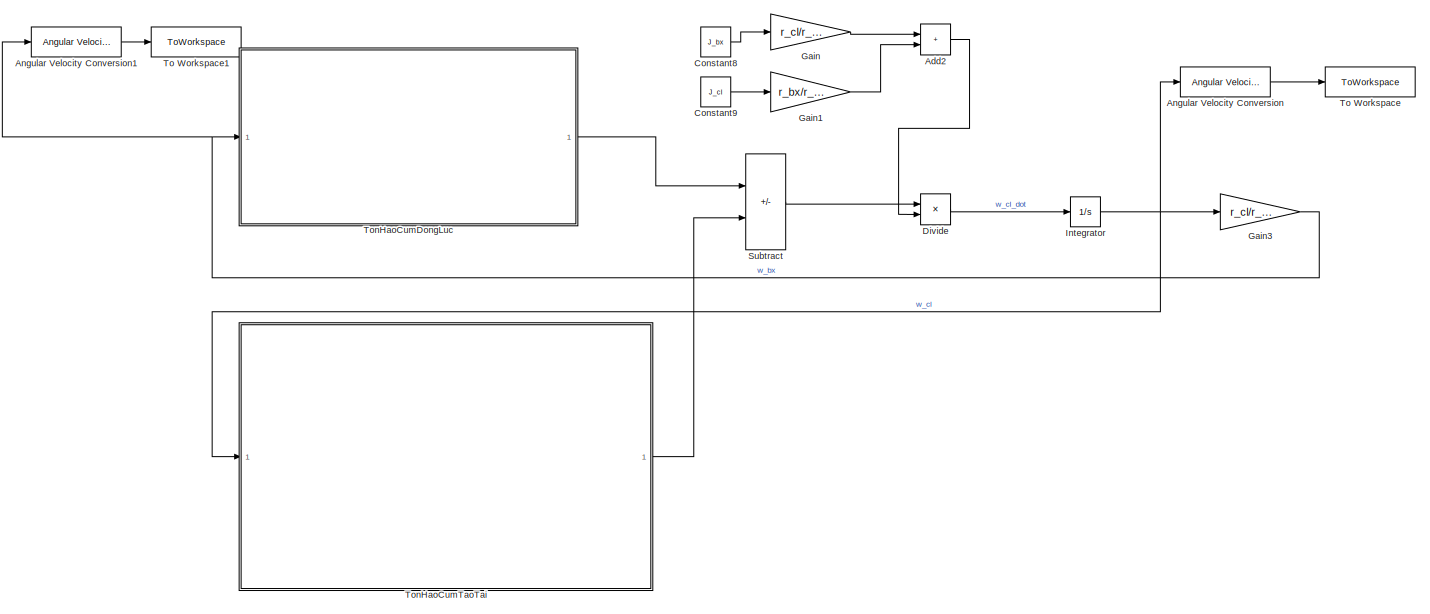
[diagram: root canvas - part 1/2, most of the canvas]
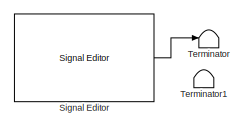
[diagram: root canvas - part 2/2, middle left region]
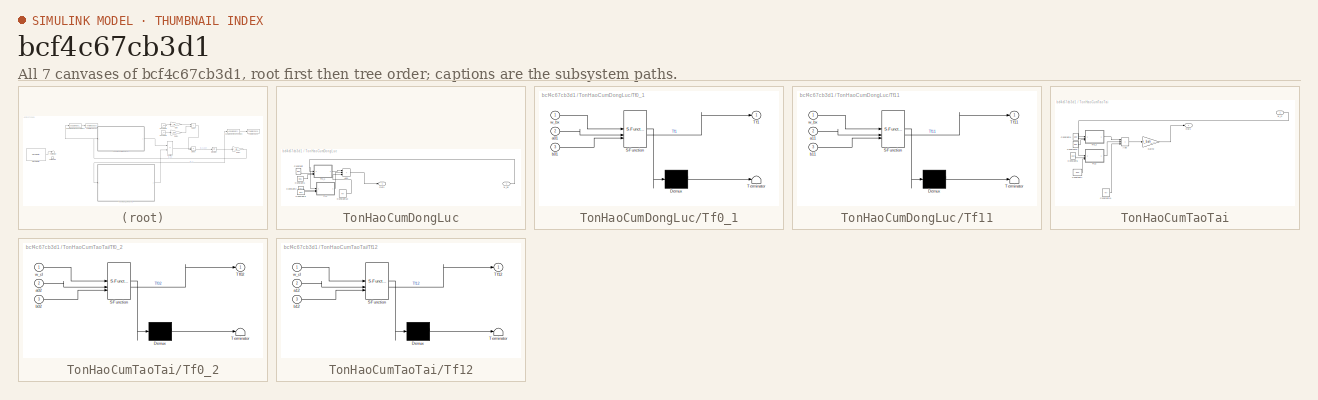
[diagram: thumbnail index - all 7 canvases of the model, root first then tree order]
MODEL slx_bcf4c67cb3d1
KIND model
CONFIG AbsTol = 1e-3
CONFIG EnableMultiTasking = on
CONFIG FixedStep = 0.2
CONFIG MaxStep = auto
CONFIG MinStep = auto
CONFIG RelTol = 1e-3
CONFIG SampleTimeConstraint = Unconstrained
CONFIG SolverName = FixedStepAuto
CONFIG StartTime = 0
CONFIG StopTime = 14.2
BLOCK [Sum] Add2
  IconShape = rectangular
BLOCK [Reference] Angular Velocity Conversion  REF=aerolibconvert2/Angular Velocity
Conversion
  SourceBlock = aerolibconvert2/Angular Velocity\nConversion
  SourceType = Angular Velocity Conversion
BLOCK [Reference] Angular Velocity Conversion1  REF=aerolibconvert2/Angular Velocity
Conversion
  SourceBlock = aerolibconvert2/Angular Velocity\nConversion
  SourceType = Angular Velocity Conversion
BLOCK [Constant] Constant8
  Value = J_bx
BLOCK [Constant] Constant9
  Value = J_cl
  VectorParams1D = off
BLOCK [Product] Divide
  Inputs = */
BLOCK [Gain] Gain
  Gain = r_cl/r_bx
BLOCK [Gain] Gain1
  Gain = r_bx/r_cl
BLOCK [Gain] Gain3
  Gain = r_cl/r_bx
BLOCK [Integrator] Integrator
  InitialCondition = w_cl_initial
  LimitOutput = on
  LowerSaturationLimit = 0
BLOCK [Reference] Signal Editor  REF=SignalEditorBlockLib/Signal Editor
  LibrarySourceBlock = simulink/Sources/Signal Editor
  SourceBlock = SignalEditorBlockLib/Signal Editor
  SourceType = SignalEditor
  UserDataPersistent = on
BLOCK [Sum] Subtract
  IconShape = rectangular
  Inputs = --
BLOCK [Terminator] Terminator
BLOCK [Terminator] Terminator1
BLOCK [ToWorkspace] To Workspace
  FixptAsFi = on
  MaxDataPoints = inf
  SampleTime = -1
  SaveFormat = Timeseries
  VariableName = n_cl
BLOCK [ToWorkspace] To Workspace1
  FixptAsFi = on
  MaxDataPoints = inf
  SampleTime = -1
  SaveFormat = Timeseries
  VariableName = n_bx
BLOCK [SubSystem] TonHaoCumDongLuc
BLOCK [Sum] TonHaoCumDongLuc/Add1
  IconShape = rectangular
  Inputs = +++
BLOCK [Constant] TonHaoCumDongLuc/Constant
  Value = a01
BLOCK [Constant] TonHaoCumDongLuc/Constant1
  Value = b01
BLOCK [Constant] TonHaoCumDongLuc/Constant10
  Value = Trr
BLOCK [Constant] TonHaoCumDongLuc/Constant2
  Value = a11
BLOCK [Constant] TonHaoCumDongLuc/Constant3
  Value = b11
BLOCK [Outport] TonHaoCumDongLuc/Out1
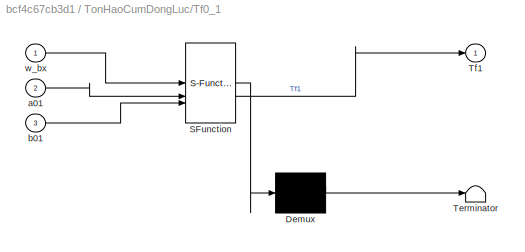
BLOCK [SubSystem] TonHaoCumDongLuc/Tf0_1
  ErrorFcn = Stateflow.Translate.translate
  PermitHierarchicalResolution = ExplicitOnly
  SFBlockType = MATLAB Function
  TreatAsAtomicUnit = on
BLOCK [Demux] TonHaoCumDongLuc/Tf0_1/ Demux 
  Outputs = 1
BLOCK [S-Function] TonHaoCumDongLuc/Tf0_1/ SFunction 
  EnableBusSupport = on
  FunctionName = sf_sfun
  PortCounts = [3 2]
  SFcnIsStateOwnerBlock = off
  SFunctionDeploymentMode = off
  Tag = Stateflow S-Function 2
BLOCK [Terminator] TonHaoCumDongLuc/Tf0_1/ Terminator 
BLOCK [Outport] TonHaoCumDongLuc/Tf0_1/Tf1
BLOCK [Inport] TonHaoCumDongLuc/Tf0_1/a01
  Port = 2
BLOCK [Inport] TonHaoCumDongLuc/Tf0_1/b01
  Port = 3
BLOCK [Inport] TonHaoCumDongLuc/Tf0_1/w_bx
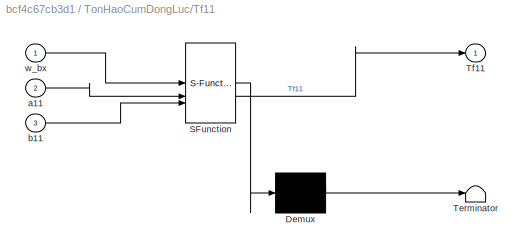
BLOCK [SubSystem] TonHaoCumDongLuc/Tf11
  ErrorFcn = Stateflow.Translate.translate
  PermitHierarchicalResolution = ExplicitOnly
  SFBlockType = MATLAB Function
  TreatAsAtomicUnit = on
BLOCK [Demux] TonHaoCumDongLuc/Tf11/ Demux 
  Outputs = 1
BLOCK [S-Function] TonHaoCumDongLuc/Tf11/ SFunction 
  EnableBusSupport = on
  FunctionName = sf_sfun
  PortCounts = [3 2]
  SFcnIsStateOwnerBlock = off
  SFunctionDeploymentMode = off
  Tag = Stateflow S-Function 3
BLOCK [Terminator] TonHaoCumDongLuc/Tf11/ Terminator 
BLOCK [Outport] TonHaoCumDongLuc/Tf11/Tf11
BLOCK [Inport] TonHaoCumDongLuc/Tf11/a11
  Port = 2
BLOCK [Inport] TonHaoCumDongLuc/Tf11/b11
  Port = 3
BLOCK [Inport] TonHaoCumDongLuc/Tf11/w_bx
BLOCK [Inport] TonHaoCumDongLuc/w_bx
BLOCK [SubSystem] TonHaoCumTaoTai
BLOCK [Sum] TonHaoCumTaoTai/Add
  IconShape = rectangular
  Inputs = +++
BLOCK [Constant] TonHaoCumTaoTai/Constant11
  Value = Trr
BLOCK [Constant] TonHaoCumTaoTai/Constant4
  Value = a02
BLOCK [Constant] TonHaoCumTaoTai/Constant5
  Value = b02
BLOCK [Constant] TonHaoCumTaoTai/Constant6
  Value = a12
BLOCK [Constant] TonHaoCumTaoTai/Constant7
  Value = b12
BLOCK [Gain] TonHaoCumTaoTai/Gain2
  Gain = r_bx/r_cl
BLOCK [Outport] TonHaoCumTaoTai/Out1
BLOCK [SubSystem] TonHaoCumTaoTai/Tf0_2
  ErrorFcn = Stateflow.Translate.translate
  PermitHierarchicalResolution = ExplicitOnly
  SFBlockType = MATLAB Function
  TreatAsAtomicUnit = on
BLOCK [Demux] TonHaoCumTaoTai/Tf0_2/ Demux 
  Outputs = 1
BLOCK [S-Function] TonHaoCumTaoTai/Tf0_2/ SFunction 
  EnableBusSupport = on
  FunctionName = sf_sfun
  PortCounts = [3 2]
  SFcnIsStateOwnerBlock = off
  SFunctionDeploymentMode = off
  Tag = Stateflow S-Function 1
BLOCK [Terminator] TonHaoCumTaoTai/Tf0_2/ Terminator 
BLOCK [Outport] TonHaoCumTaoTai/Tf0_2/Tf02
BLOCK [Inport] TonHaoCumTaoTai/Tf0_2/a02
  Port = 2
BLOCK [Inport] TonHaoCumTaoTai/Tf0_2/b02
  Port = 3
BLOCK [Inport] TonHaoCumTaoTai/Tf0_2/w_cl
BLOCK [SubSystem] TonHaoCumTaoTai/Tf12
  ErrorFcn = Stateflow.Translate.translate
  PermitHierarchicalResolution = ExplicitOnly
  SFBlockType = MATLAB Function
  TreatAsAtomicUnit = on
BLOCK [Demux] TonHaoCumTaoTai/Tf12/ Demux 
  Outputs = 1
BLOCK [S-Function] TonHaoCumTaoTai/Tf12/ SFunction 
  EnableBusSupport = on
  FunctionName = sf_sfun
  PortCounts = [3 2]
  SFcnIsStateOwnerBlock = off
  SFunctionDeploymentMode = off
  Tag = Stateflow S-Function 4
BLOCK [Terminator] TonHaoCumTaoTai/Tf12/ Terminator 
BLOCK [Outport] TonHaoCumTaoTai/Tf12/Tf12
BLOCK [Inport] TonHaoCumTaoTai/Tf12/a12
  Port = 2
BLOCK [Inport] TonHaoCumTaoTai/Tf12/b12
  Port = 3
BLOCK [Inport] TonHaoCumTaoTai/Tf12/w_cl
BLOCK [Inport] TonHaoCumTaoTai/w_cl
LINE Add2:1 -> Divide:2
LINE Angular Velocity Conversion1:1 -> To Workspace1:1
LINE Angular Velocity Conversion:1 -> To Workspace:1
LINE Constant8:1 -> Gain:1
LINE Constant9:1 -> Gain1:1
LINE Divide:1 -> Integrator:1
LINE Gain1:1 -> Add2:2
NET Gain3:1 -> Angular Velocity Conversion1:1, TonHaoCumDongLuc:1
LINE Gain:1 -> Add2:1
NET Integrator:1 -> Angular Velocity Conversion:1, Gain3:1, TonHaoCumTaoTai:1
LINE Signal Editor:1 -> Terminator:1
LINE Subtract:1 -> Divide:1
LINE TonHaoCumDongLuc/Add1:1 -> TonHaoCumDongLuc/Out1:1
LINE TonHaoCumDongLuc/Constant10:1 -> TonHaoCumDongLuc/Add1:3
LINE TonHaoCumDongLuc/Constant1:1 -> TonHaoCumDongLuc/Tf0_1:3
LINE TonHaoCumDongLuc/Constant2:1 -> TonHaoCumDongLuc/Tf11:2
LINE TonHaoCumDongLuc/Constant3:1 -> TonHaoCumDongLuc/Tf11:3
LINE TonHaoCumDongLuc/Constant:1 -> TonHaoCumDongLuc/Tf0_1:2
LINE TonHaoCumDongLuc/Tf0_1:1 -> TonHaoCumDongLuc/Add1:1
LINE TonHaoCumDongLuc/Tf11:1 -> TonHaoCumDongLuc/Add1:2
NET TonHaoCumDongLuc/w_bx:1 -> TonHaoCumDongLuc/Tf0_1:1, TonHaoCumDongLuc/Tf11:1
LINE TonHaoCumDongLuc:1 -> Subtract:1
LINE TonHaoCumTaoTai/Add:1 -> TonHaoCumTaoTai/Gain2:1
LINE TonHaoCumTaoTai/Constant11:1 -> TonHaoCumTaoTai/Add:3
LINE TonHaoCumTaoTai/Constant4:1 -> TonHaoCumTaoTai/Tf0_2:2
LINE TonHaoCumTaoTai/Constant5:1 -> TonHaoCumTaoTai/Tf0_2:3
LINE TonHaoCumTaoTai/Constant6:1 -> TonHaoCumTaoTai/Tf12:2
LINE TonHaoCumTaoTai/Constant7:1 -> TonHaoCumTaoTai/Tf12:3
LINE TonHaoCumTaoTai/Gain2:1 -> TonHaoCumTaoTai/Out1:1
LINE TonHaoCumTaoTai/Tf0_2:1 -> TonHaoCumTaoTai/Add:1
LINE TonHaoCumTaoTai/Tf12:1 -> TonHaoCumTaoTai/Add:2
NET TonHaoCumTaoTai/w_cl:1 -> TonHaoCumTaoTai/Tf0_2:1, TonHaoCumTaoTai/Tf12:1
LINE TonHaoCumTaoTai:1 -> Subtract:2
note: NET lines group one-source signal fan-out (src -> all destinations, sorted); 1:1 wires keep LINE
CHART TonHaoCumDongLuc/Tf0_1 states=1 transitions=1
  STATE_LABEL 'eML_blk_kernel()'
  STATE_LABEL 'SCRIPT:\nfunction Tf1 = fcn(w_bx,a01,b01)\n\nTf1 = 0.0362*(a01*w_bx+b01)*15;\n'
CHART TonHaoCumDongLuc/Tf11 states=1 transitions=1
  STATE_LABEL 'eML_blk_kernel()'
  STATE_LABEL 'SCRIPT:\nfunction Tf11 = fcn(w_bx,a11,b11)\n\nTf11 = a11*w_bx+b11;\n'
CHART TonHaoCumTaoTai/Tf12 states=1 transitions=1
  STATE_LABEL 'eML_blk_kernel()'
  STATE_LABEL 'SCRIPT:\nfunction Tf12 = fcn(w_cl,a12,b12)\n\nTf12 = a12*w_cl+b12;\n'
CHART TonHaoCumTaoTai/Tf0_2 states=1 transitions=1
  STATE_LABEL 'eML_blk_kernel()'
  STATE_LABEL 'SCRIPT:\nfunction Tf02 = fcn(w_cl,a02,b02)\n\nTf02 = 0.0362*(a02*w_cl+b02)*2;\n'
CHART  states=0 transitions=0
CHART  states=0 transitions=0
CHART  states=0 transitions=0
CHART  states=0 transitions=0
